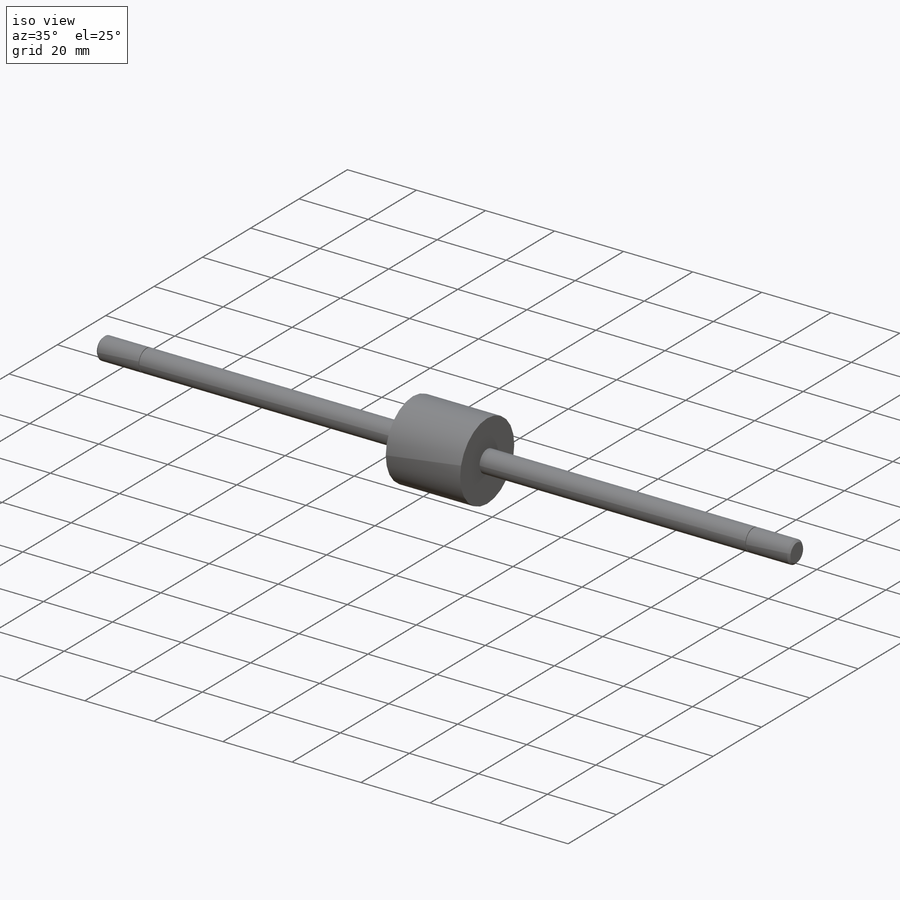
[diagram: iso view]
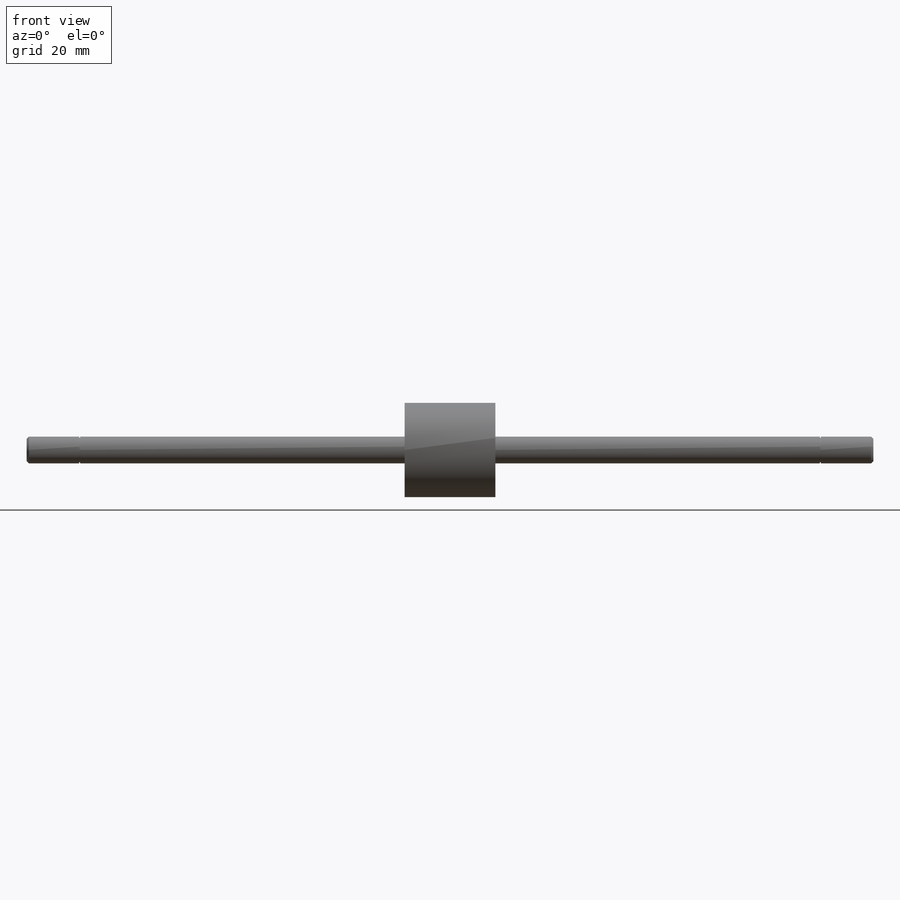
[diagram: front view]
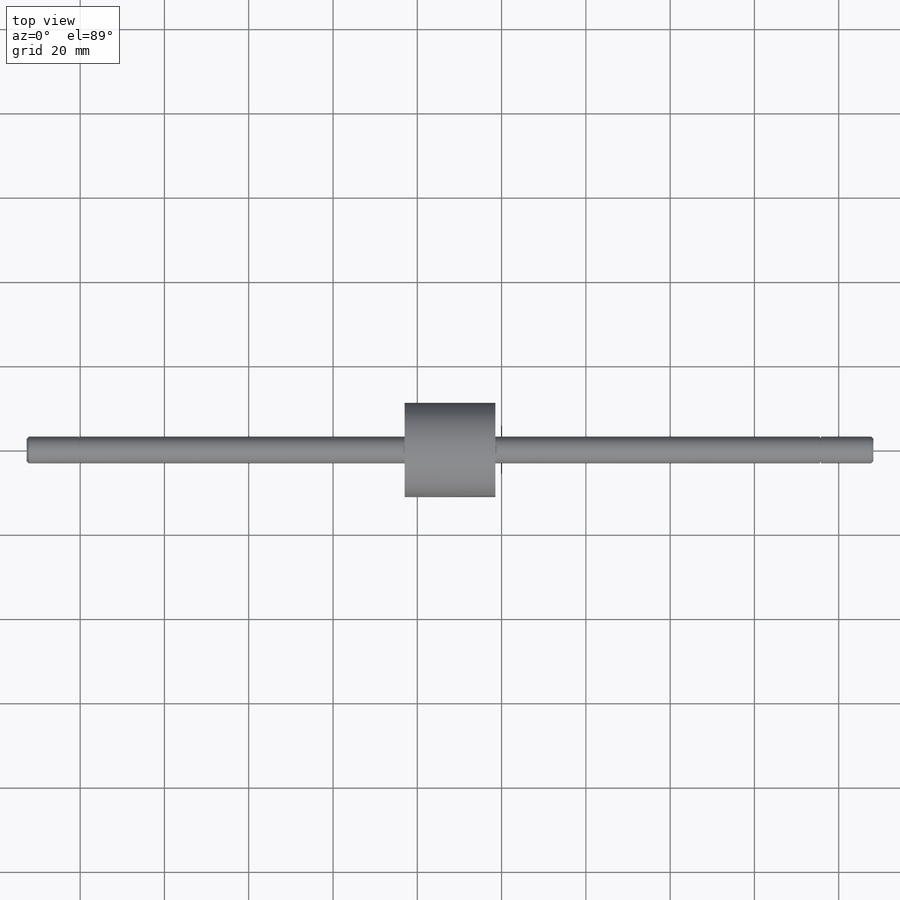
[diagram: top view]
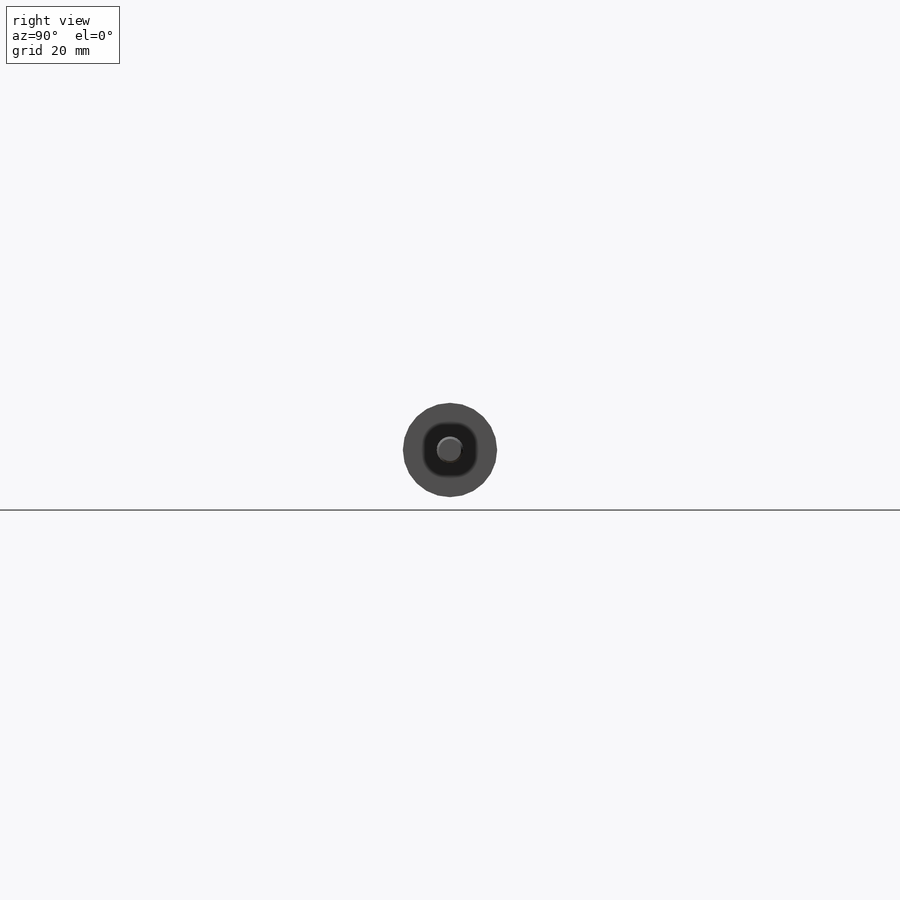
[diagram: right view]
SOLIDWORKS PART (.sldprt)
format: sldprt  version: not decoded by parser v0  size: 318,976 bytes
history: native  units: mm
features: plane x48, sketch x19, revolve x4, thread x2, cut_revolve x2, material x1 (+14 scaffold rows collapsed; 1 parser-record rows omitted)
feature tree (91):
  scaffold x14  (default folders/planes/origin — collapsed)
  material  "Plain Carbon Steel"
  sketch  "Sketch1"
  revolve  "Revolve1"  [1 undecoded]
  thread  "Cosmetic Thread1"  Diameter=12.7mm  [1 undecoded]
  sketch  "Sketch2"
  revolve  "Revolve2"  Angle=360deg
  plane  "Plane1"  Offset=0mm
  sketch  "Sketch3"
  revolve  "Revolve3"  [1 undecoded]
  thread  "Cosmetic Thread2"  Diameter=12.7mm  [1 undecoded]
  sketch  "Sketch4"
  revolve  "Revolve4"  Angle=360deg
  plane  "Plane2"  Offset=0mm
  plane  "Plane3"  Offset=175.514mm
  plane  "Plane4"  Offset=12.7mm
  plane  "Plane5"  Offset=188.214mm
  plane  "Plane6"  Offset=12.7mm
  plane  "Plane7"  Offset=0mm
  sketch  "Sketch5"
  cut_revolve  "Cut-Revolve1"  Angle=360deg
  sketch  "Sketch6"
  cut_revolve  "Cut-Revolve2"  Angle=360deg
  plane  "Plane8"  Offset=0mm
  plane  "Plane9"  Offset=16.764mm
  parser-record x1  (decoder bookkeeping rows leaked as tree rows — omitted from the tree; the rows remain in map.json)
  plane  "dia1 XY"
  plane  "dia1 XZ"
  plane  "dia1 YZ"
  sketch  "dia1"
  plane  "dia12 XY"
  plane  "dia12 XZ"
  plane  "dia12 YZ"
  sketch  "dia12"
  plane  "dia2 XY"
  plane  "dia2 XZ"
  plane  "dia2 YZ"
  sketch  "dia2"
  plane  "dia22 XY"
  plane  "dia22 XZ"
  plane  "dia22 YZ"
  sketch  "dia22"
  plane  "rl1 XY"
  plane  "rl1 XZ"
  plane  "rl1 YZ"
  sketch  "rl1"
  plane  "rl1_der XY"
  plane  "rl1_der XZ"
  plane  "rl1_der YZ"
  sketch  "rl1_der"
  plane  "rl2 XY"
  plane  "rl2 XZ"
  plane  "rl2 YZ"
  sketch  "rl2"
  plane  "rl2_der XY"
  plane  "rl2_der XZ"
  plane  "rl2_der YZ"
  sketch  "rl2_der"
  plane  "rod_cp XY"
  plane  "rod_cp XZ"
  plane  "rod_cp YZ"
  sketch  "rod_cp"
  plane  "stroke1 XY"
  plane  "stroke1 XZ"
  plane  "stroke1 YZ"
  sketch  "stroke1"
  plane  "thd1 XY"
  plane  "thd1 XZ"
  plane  "thd1 YZ"
  sketch  "thd1"
  plane  "thd2 XY"
  plane  "thd2 XZ"
  plane  "thd2 YZ"
  sketch  "thd2"
  plane  "to_rod_clevis XY"
  plane  "to_rod_clevis XZ"
  plane  "to_rod_clevis YZ"
  sketch  "to_rod_clevis"
decode coverage: 6 of 27 modeling features carry decoded parameters
note: 4 parameter values undecoded
note: suppression state not decoded; provenance and decode notes live in map.json
